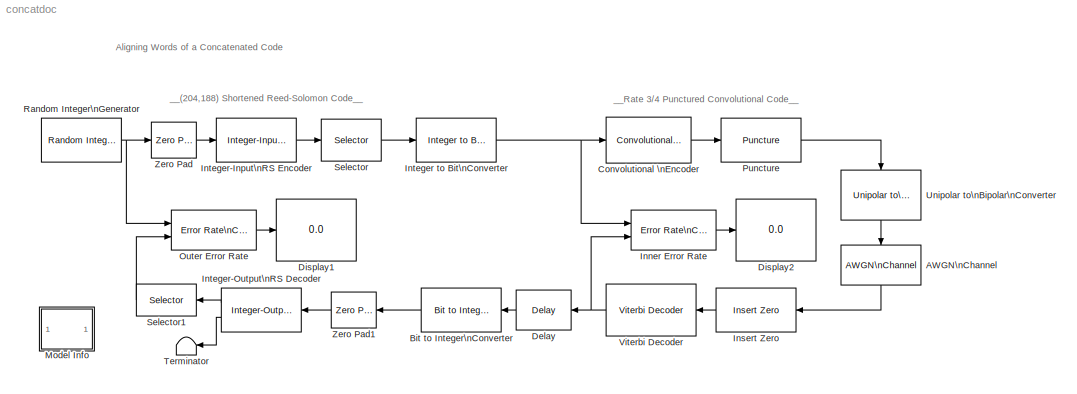
MODEL concatdoc
KIND model
CONFIG AbsTol = auto
CONFIG FixedStep = auto
CONFIG MaxStep = auto
CONFIG MinStep = auto
CONFIG RelTol = 1e-3
CONFIG Solver = ode45
CONFIG SolverMode = SingleTasking
CONFIG StartTime = 0.0
CONFIG StopTime = inf
BLOCK [Reference] AWGN\nChannel  REF=commchan2/AWGN\nChannel
  EsNodB = EbNodB+10*log10(log2(M))
  Ports = [1, 1]
  Ps = 1
  SNRdB = 5
  SourceBlock = commchan2/AWGN\nChannel
  SourceType = AWGN Channel
  Tsym = Tsym
  noiseMode = Signal to noise ratio  (SNR)
  seed = 68521
  variance = 10^(-0.1*15)/(2048*2)
BLOCK [Reference] Bit to Integer\nConverter  REF=commutil2/Bit to Integer\nConverter
  Ports = [1, 1]
  SourceBlock = commutil2/Bit to Integer\nConverter
  SourceType = Bit to Integer Converter
  nbits = 8
BLOCK [Reference] Convolutional \nEncoder  REF=commcnvcod2/Convolutional\nEncoder
  Ports = [1, 1]
  SourceBlock = commcnvcod2/Convolutional\nEncoder
  SourceType = Convolutional Encoder
  reset = None
  trellis = poly2trellis(7, [171 133])
BLOCK [Reference] Delay  REF=dspsigops/Delay
  Ports = [1, 1]
  SourceBlock = dspsigops/Delay
  SourceType = Delay
  delay = 1632-136
  dif_ic_for_ch = off
  dif_ic_for_dly = off
  dly_unit = Samples
  ic = 0
  ic_detail = off
  reset_popup = None
BLOCK [Display] Display1
  Decimation = 1
  Ports = [1]
BLOCK [Display] Display2
  Decimation = 1
  Ports = [1]
BLOCK [Reference] Inner Error Rate  REF=commsink2/Error Rate\nCalculation
  N = 136
  PMode = Port
  Ports = [2, 1]
  RsMode2 = off
  SourceBlock = commsink2/Error Rate\nCalculation
  SourceType = Error Rate Calculation
  WsName = ErrorVec
  cp_mode = Entire frame
  maxBits = 1e6
  numErr = 100
  st_delay = 0
  stop = on
  subframe = []
BLOCK [Reference] Insert Zero  REF=commsequence2/Insert Zero
  Ports = [1, 1]
  SourceBlock = commsequence2/Insert Zero
  SourceType = Insert Zero
  insertZeroVector = [1 1 0 1 1 0]'
BLOCK [Reference] Integer to Bit\nConverter  REF=commutil2/Integer to Bit\nConverter
  Ports = [1, 1]
  SourceBlock = commutil2/Integer to Bit\nConverter
  SourceType = Integer to Bit Converter
  nbits = 8
BLOCK [Reference] Integer-Input\nRS Encoder  REF=commblkcod2/Integer-Input\nRS Encoder
  Ports = [1, 1]
  SourceBlock = commblkcod2/Integer-Input\nRS Encoder
  SourceType = Integer-Input RS Encoder
  genPoly = rsgenpoly(7,3)
  k = 239
  n = 255
  primPoly = [1 0 1 1]
  specGenPoly = off
  specPrimPoly = off
BLOCK [Reference] Integer-Output\nRS Decoder  REF=commblkcod2/Integer-Output\nRS Decoder
  Ports = [1, 2]
  SourceBlock = commblkcod2/Integer-Output\nRS Decoder
  SourceType = Integer-Output RS Decoder
  genPoly = rsgenpoly(7,3)
  k = 239
  n = 255
  primPoly = [1 0 1 1]
  showNumErr = on
  specGenPoly = off
  specPrimPoly = off
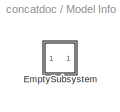
BLOCK [SubSystem] Model Info
  CopyFcn = slcm CopyBlock;
  DeleteFcn = slcm Cancel;
  InitFcn = slcm('UpdateAllCMBlocksInThisModelInit')
  LoadFcn = slcm LoadBlock;
  MaskCallbackString = ||||||||||||||||||||||||||||||
  MaskDescription = This block allows revision control information to be displayed within the model.
  MaskDisplay = text(str2num(LeftAlignmentValue), 0.5, MaskDisplayString, 'HorizontalAlignment', HorizontalTextAlignment)\n
  MaskEnableString = on,on,on,on,on,on,on,on,on,on,on,on,on,on,on,on,on,on,on,on,on,on,on,on,on,on,on,on,on,on,on
  MaskIconFrame = on
  MaskIconOpaque = on
  MaskIconRotate = none
  MaskIconUnits = normalized
  MaskPromptString = InitialSaveTempField|InitialBlockCM|BlockCM|Frame|SaveTempField|DisplayStringWithTags|MaskDisplayString|HorizontalTextAlignment|LeftAlignmentValue|SourceBlockDiagram|TagMaxNumber|CMTag1|CMTag2|CMTag3|CMTag4|CMTag5|CMTag6|CMTag7|CMTag8|CMTag9|CMTag10|CMTag11|CMTag12|CMTag13|CMTag14|CMTag15|CMTag16|CMTag17|CMTag18|CMTag19|CMTag20
  MaskSelfModifiable = on
  MaskStyleString = edit,edit,edit,edit,edit,edit,edit,edit,edit,edit,edit,edit,edit,edit,edit,edit,edit,edit,edit,edit,edit,edit,edit,edit,edit,edit,edit,edit,edit,edit,edit
  MaskToolTipString = on,on,on,on,on,on,on,on,on,on,on,on,on,on,on,on,on,on,on,on,on,on,on,on,on,on,on,on,on,on,on
  MaskTunableValueString = on,on,on,on,on,on,on,on,on,on,on,on,on,on,on,on,on,on,on,on,on,on,on,on,on,on,on,on,on,on,on
  MaskType = CMBlock
  MaskValueString = |None|None|on||Info|Info|Center|0.5|concatdoc|20||||||||||||||||||||
  MaskVarAliasString = ,,,,,,,,,,,,,,,,,,,,,,,,,,,,,,
  MaskVariables = InitialSaveTempField=&1;InitialBlockCM=&2;BlockCM=&3;Frame=&4;SaveTempField=&5;DisplayStringWithTags=&6;MaskDisplayString=&7;HorizontalTextAlignment=&8;LeftAlignmentValue=&9;SourceBlockDiagram=&10;TagMaxNumber=@11;CMTag1=&12;CMTag2=&13;CMTag3=&14;CMTag4=&15;CMTag5=&16;CMTag6=&17;CMTag7=&18;CMTag8=&19;CMTag9=&20;CMTag10=&21;CMTag11=&22;CMTag12=&23;CMTag13=&24;CMTag14=&25;CMTag15=&26;CMTag16=&27;CMT...<+45ch>
  MaskVisibilityString = off,off,off,off,off,off,off,off,off,off,off,off,off,off,off,off,off,off,off,off,off,off,off,off,off,off,off,off,off,off,off
  NameChangeFcn = slcm Rename;
  OpenFcn = commdemohelp;
  Ports = []
  PostSaveFcn = slcm('UpdateAllCMBlocksInThisModel')
  TreatAsAtomicUnit = off
BLOCK [SubSystem] Model Info/EmptySubsystem
  Ports = []
  TreatAsAtomicUnit = off
BLOCK [Reference] Outer Error Rate  REF=commsink2/Error Rate\nCalculation
  N = 188
  PMode = Port
  Ports = [2, 1]
  RsMode2 = off
  SourceBlock = commsink2/Error Rate\nCalculation
  SourceType = Error Rate Calculation
  WsName = ErrorVec
  cp_mode = Entire frame
  maxBits = 1e6
  numErr = 100
  st_delay = 0
  stop = off
  subframe = []
BLOCK [Reference] Puncture  REF=commsequence2/Puncture
  Ports = [1, 1]
  SourceBlock = commsequence2/Puncture
  SourceType = Puncture
  punctureVector = [1 1 0 1 1 0]'
BLOCK [Reference] Random Integer\nGenerator  REF=commrandsrc2/Random Integer\nGenerator
  Ports = [0, 1]
  SourceBlock = commrandsrc2/Random Integer\nGenerator
  SourceType = Random Integer Generator
  Ts = 1
  frameBased = on
  mul = 256
  orient = off
  sampPerFrame = 188
  seed = 56479
BLOCK [Selector] Selector
  Elements = [1:204]
  InputPortWidth = 255
  Ports = [1, 1]
BLOCK [Selector] Selector1
  Elements = [1:188]
  InputPortWidth = 239
  Ports = [1, 1]
BLOCK [Terminator] Terminator
BLOCK [Reference] Unipolar to\nBipolar\nConverter  REF=commutil2/Unipolar to\nBipolar\nConverter
  M = 2
  Ports = [1, 1]
  SourceBlock = commutil2/Unipolar to\nBipolar\nConverter
  SourceType = Unipolar to Bipolar Converter
  polarity = Negative
BLOCK [Reference] Viterbi Decoder  REF=commcnvcod2/Viterbi Decoder
  Ports = [1, 1]
  SourceBlock = commcnvcod2/Viterbi Decoder
  SourceType = Viterbi Decoder
  dectype = Unquantized
  nsdecb = 4
  opmode = Continuous
  reset = off
  tbdepth = 136
  trellis = poly2trellis(7, [171 133])
BLOCK [Reference] Zero Pad  REF=dspsigops/Zero Pad
  Ports = [1, 1]
  SourceBlock = dspsigops/Zero Pad
  SourceType = Zero Pad
  numOutCols = 1
  numOutRows = 239
  padNumOutColsSpecMethod = User-specified
  padNumOutRowsSpecMethod = User-specified
  padSigAt = End
  trunc_flag = None
  zpadAlong = Columns
BLOCK [Reference] Zero Pad1  REF=dspsigops/Zero Pad
  Ports = [1, 1]
  SourceBlock = dspsigops/Zero Pad
  SourceType = Zero Pad
  numOutCols = 1
  numOutRows = 255
  padNumOutColsSpecMethod = User-specified
  padNumOutRowsSpecMethod = User-specified
  padSigAt = End
  trunc_flag = None
  zpadAlong = Columns
ANNOTATION (root): Aligning Words of a Concatenated Code
ANNOTATION (root): __(204,188) Shortened Reed-Solomon Code__
ANNOTATION (root): __Rate 3/4 Punctured Convolutional Code__
LINE AWGN\nChannel:1 -> Insert Zero:1
LINE Bit to Integer\nConverter:1 -> Zero Pad1:1
LINE Convolutional \nEncoder:1 -> Puncture:1
LINE Delay:1 -> Bit to Integer\nConverter:1
LINE Inner Error Rate:1 -> Display2:1
LINE Insert Zero:1 -> Viterbi Decoder:1
NET Integer to Bit\nConverter:1 -> Convolutional \nEncoder:1, Inner Error Rate:1
LINE Integer-Input\nRS Encoder:1 -> Selector:1
LINE Integer-Output\nRS Decoder:1 -> Selector1:1
LINE Integer-Output\nRS Decoder:2 -> Terminator:1
LINE Outer Error Rate:1 -> Display1:1
LINE Puncture:1 -> Unipolar to\nBipolar\nConverter:1
NET Random Integer\nGenerator:1 -> Outer Error Rate:1, Zero Pad:1
LINE Selector1:1 -> Outer Error Rate:2
LINE Selector:1 -> Integer to Bit\nConverter:1
LINE Unipolar to\nBipolar\nConverter:1 -> AWGN\nChannel:1
NET Viterbi Decoder:1 -> Delay:1, Inner Error Rate:2
LINE Zero Pad1:1 -> Integer-Output\nRS Decoder:1
LINE Zero Pad:1 -> Integer-Input\nRS Encoder:1
note: NET lines group one-source signal fan-out (src -> all destinations, sorted); 1:1 wires keep LINE
